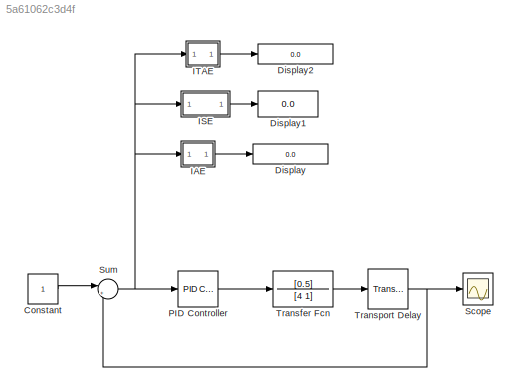
MODEL slx_5a61062c3d4f
KIND model
CONFIG AbsTol = auto
CONFIG EnableMultiTasking = off
CONFIG FixedStep = auto
CONFIG MaxStep = auto
CONFIG MinStep = auto
CONFIG RelTol = 1e-3
CONFIG SampleTimeConstraint = Unconstrained
CONFIG SolverName = VariableStepAuto
CONFIG StartTime = 0.0
CONFIG StopTime = 20
BLOCK [Constant] Constant
BLOCK [Display] Display
  Decimation = 1
  Ports = [1]
BLOCK [Display] Display1
  Decimation = 1
  Ports = [1]
BLOCK [Display] Display2
  Decimation = 1
  Ports = [1]
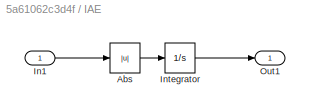
BLOCK [SubSystem] IAE
  Ports = [1, 1]
  RequestExecContextInheritance = off
BLOCK [Abs] IAE/Abs
  SaturateOnIntegerOverflow = off
BLOCK [Inport] IAE/In1
BLOCK [Integrator] IAE/Integrator
  Ports = [1, 1]
BLOCK [Outport] IAE/Out1
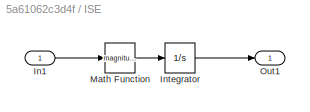
BLOCK [SubSystem] ISE
  Ports = [1, 1]
  RequestExecContextInheritance = off
BLOCK [Inport] ISE/In1
BLOCK [Integrator] ISE/Integrator
  Ports = [1, 1]
BLOCK [Math] ISE/Math Function
  Operator = magnitude^2
  Ports = [1, 1]
BLOCK [Outport] ISE/Out1
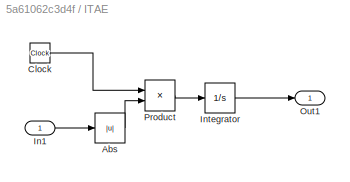
BLOCK [SubSystem] ITAE
  Ports = [1, 1]
  RequestExecContextInheritance = off
BLOCK [Abs] ITAE/Abs
  SaturateOnIntegerOverflow = off
BLOCK [Clock] ITAE/Clock
  Decimation = 1
BLOCK [Inport] ITAE/In1
BLOCK [Integrator] ITAE/Integrator
  Ports = [1, 1]
BLOCK [Outport] ITAE/Out1
BLOCK [Product] ITAE/Product
  Ports = [2, 1]
BLOCK [Reference] PID Controller  REF=slpidlib/PID Controller
  Ports = [1, 1]
  SourceBlock = slpidlib/PID Controller
  SourceProductBaseCode = SL
  SourceType = PID 1dof
BLOCK [Scope] Scope
  Floating = off
  NumInputPorts = 1
  Ports = [1]
  ScopeSpecificationString = Simulink.scopes.TimeScopeBlockCfg('CurrentConfiguration', extmgr.ConfigurationSet(extmgr.Configuration('Core','General UI',true),extmgr.Configuration('Core','Source UI',true),extmgr.Configuration('Sources','WiredSimulink',true),extmgr.Configuration('Visuals','Time Domain',true,'SerializedDisplays',{struct('MinYLimReal','-0.1328','MaxYLimReal','1.19516','YLabelReal','','MinYLimMag','0.00000','MaxYL...<+1367ch>
BLOCK [Sum] Sum
  Inputs = |+-
  Ports = [2, 1]
BLOCK [TransferFcn] Transfer Fcn
  Denominator = [4 1]
  Numerator = [0.5]
BLOCK [TransportDelay] Transport Delay
  Ports = [1, 1]
LINE Constant:1 -> Sum:1
LINE IAE/Abs:1 -> IAE/Integrator:1
LINE IAE/In1:1 -> IAE/Abs:1
LINE IAE/Integrator:1 -> IAE/Out1:1
LINE IAE:1 -> Display:1
LINE ISE/In1:1 -> ISE/Math Function:1
LINE ISE/Integrator:1 -> ISE/Out1:1
LINE ISE/Math Function:1 -> ISE/Integrator:1
LINE ISE:1 -> Display1:1
LINE ITAE/Abs:1 -> ITAE/Product:2
LINE ITAE/Clock:1 -> ITAE/Product:1
LINE ITAE/In1:1 -> ITAE/Abs:1
LINE ITAE/Integrator:1 -> ITAE/Out1:1
LINE ITAE/Product:1 -> ITAE/Integrator:1
LINE ITAE:1 -> Display2:1
LINE PID Controller:1 -> Transfer Fcn:1
NET Sum:1 -> IAE:1, ISE:1, ITAE:1, PID Controller:1
LINE Transfer Fcn:1 -> Transport Delay:1
NET Transport Delay:1 -> Scope:1, Sum:2
note: NET lines group one-source signal fan-out (src -> all destinations, sorted); 1:1 wires keep LINE
